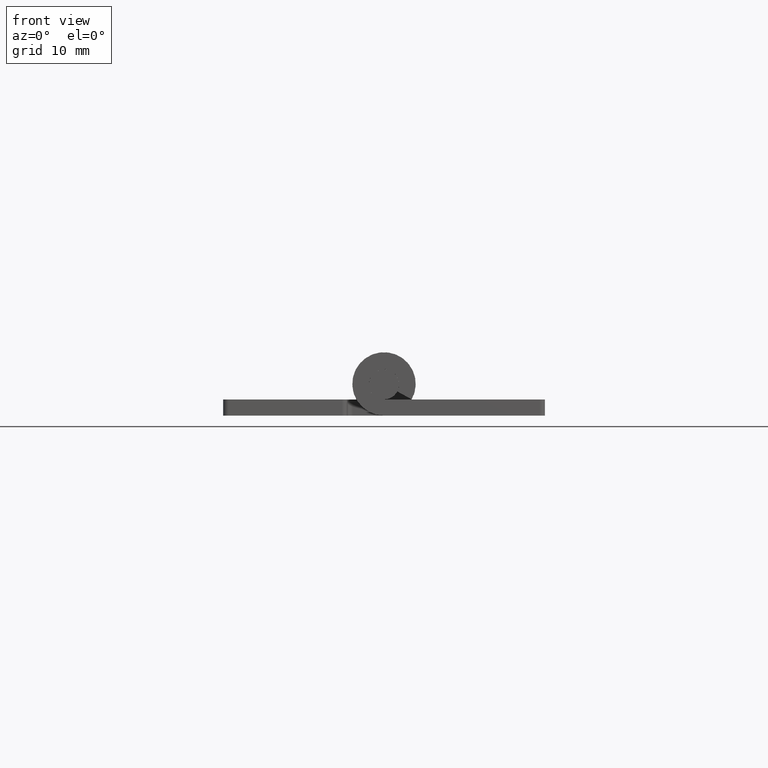
[diagram: clean part render]
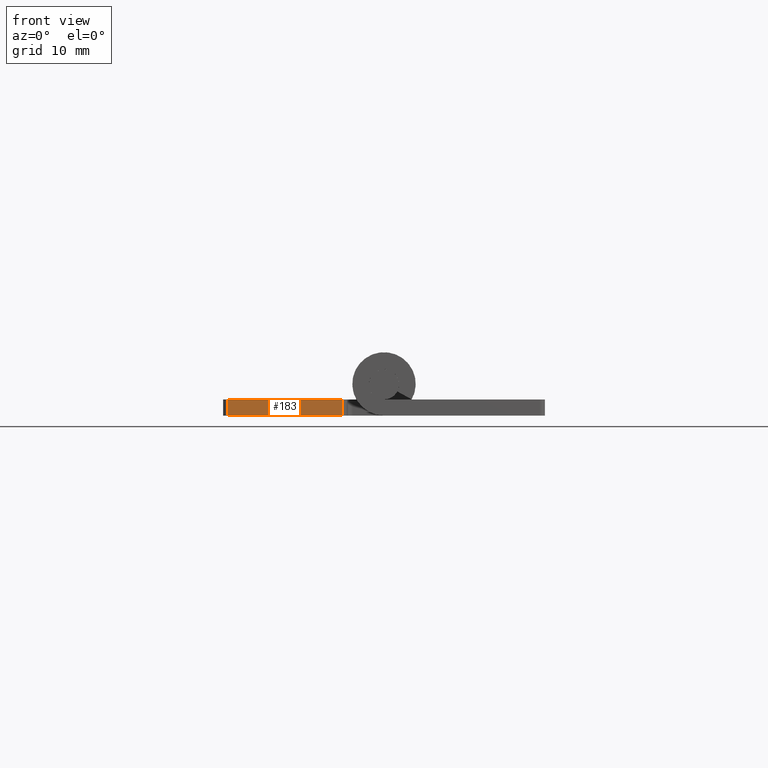
[diagram: same view with one face highlighted and labeled with its STEP entity id]
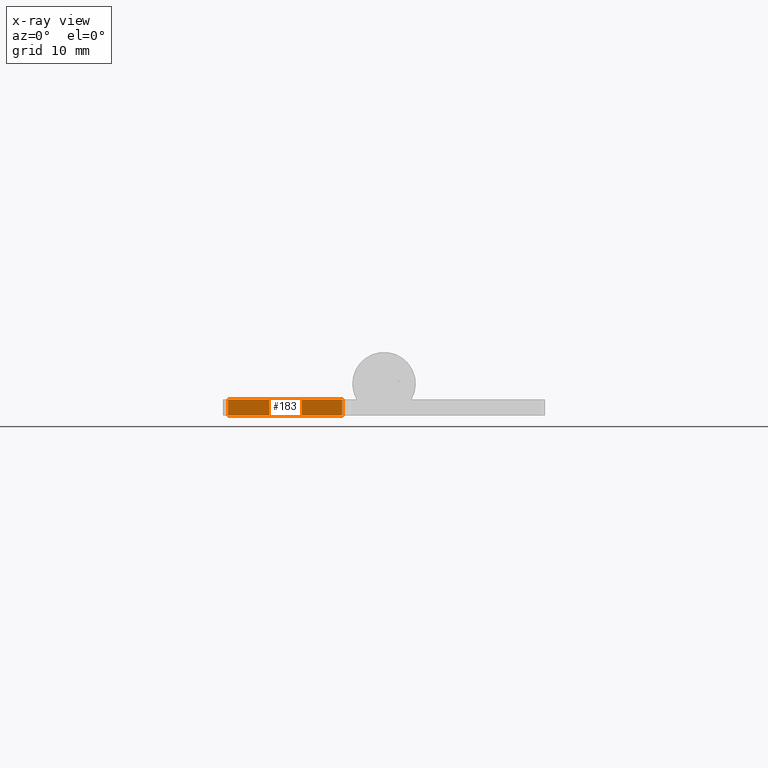
[diagram: x-ray of the same camera — body ghosted, the highlighted face saturated]
A machine part, front view. The second image highlights one B-rep face of the part: STEP entity #183.
The next image is the same camera in x-ray: the body ghosted, the highlighted face saturated — about 0% of this face is hidden behind the body in this view.
In plain terms, the highlighted planar face has unit normal (0, 1, 0).
Its self-contained STEP definition (entity closure, byte-faithful):
#183=ADVANCED_FACE('',(#559),#558,.F.);
#558=PLANE('',#1003);
#559=FACE_OUTER_BOUND('',#1004,.T.);
#1000=CARTESIAN_POINT('',(-1.66349999999E+01,6.70752342558E-12,-3.25999780003E+00));
#1001=DIRECTION('',(-0.00000000000E+00,1.00000000000E+00,0.00000000000E+00));
#1002=DIRECTION('',(0.00000000000E+00,0.00000000000E+00,1.00000000000E+00));
#1003=AXIS2_PLACEMENT_3D('',#1000,#1001,#1002);
#1004=EDGE_LOOP('',(#1335,#1336,#1337,#1338));
#1335=ORIENTED_EDGE('',*,*,#1551,.F.);
#1336=ORIENTED_EDGE('',*,*,#1574,.F.);
#1337=ORIENTED_EDGE('',*,*,#1575,.F.);
#1338=ORIENTED_EDGE('',*,*,#1545,.T.);
#1545=EDGE_CURVE('',#2209,#2202,#2210,.T.);
#1551=EDGE_CURVE('',#2244,#2202,#2251,.T.);
#1574=EDGE_CURVE('',#2407,#2244,#2408,.T.);
#1575=EDGE_CURVE('',#2209,#2407,#2414,.T.);
#2202=VERTEX_POINT('',#3051);
#2209=VERTEX_POINT('',#3056);
#2210=LINE('',#3057,#3058);
#2244=VERTEX_POINT('',#3078);
#2251=LINE('',#3083,#3084);
#2407=VERTEX_POINT('',#3181);
#2408=LINE('',#3182,#3183);
#2414=LINE('',#3185,#3186);
#3051=CARTESIAN_POINT('',(-4.14999999990E+00,6.70752342558E-12,-1.50000000001E+00));
#3056=CARTESIAN_POINT('',(-4.14999999990E+00,7.38953342960E-12,-3.09999800001E+00));
#3057=CARTESIAN_POINT('',(-4.14999999990E+00,7.38953342960E-12,-3.09999800001E+00));
#3058=VECTOR('',#3059,1.59999800001E+00);
#3059=DIRECTION('',(0.00000000000E+00,0.00000000000E+00,1.00000000000E+00));
#3078=CARTESIAN_POINT('',(-1.54999999999E+01,2.44995135290E-11,-1.50000000001E+00));
#3083=CARTESIAN_POINT('',(-1.54999999999E+01,6.70752342558E-12,-1.50000000002E+00));
#3084=VECTOR('',#3085,1.13500000000E+01);
#3085=DIRECTION('',(1.00000000000E+00,0.00000000000E+00,1.56174632697E-12));
#3181=CARTESIAN_POINT('',(-1.54999999999E+01,6.70752342558E-12,-3.09999800002E+00));
#3182=CARTESIAN_POINT('',(-1.54999999999E+01,2.44995135290E-11,-3.09999800002E+00));
#3183=VECTOR('',#3184,1.59999800001E+00);
#3184=DIRECTION('',(0.00000000000E+00,0.00000000000E+00,1.00000000000E+00));
#3185=CARTESIAN_POINT('',(-4.14999999990E+00,6.70752342558E-12,-3.09999800002E+00));
#3186=VECTOR('',#3187,1.13500000000E+01);
#3187=DIRECTION('',(-1.00000000000E+00,0.00000000000E+00,-7.81166614507E-13));